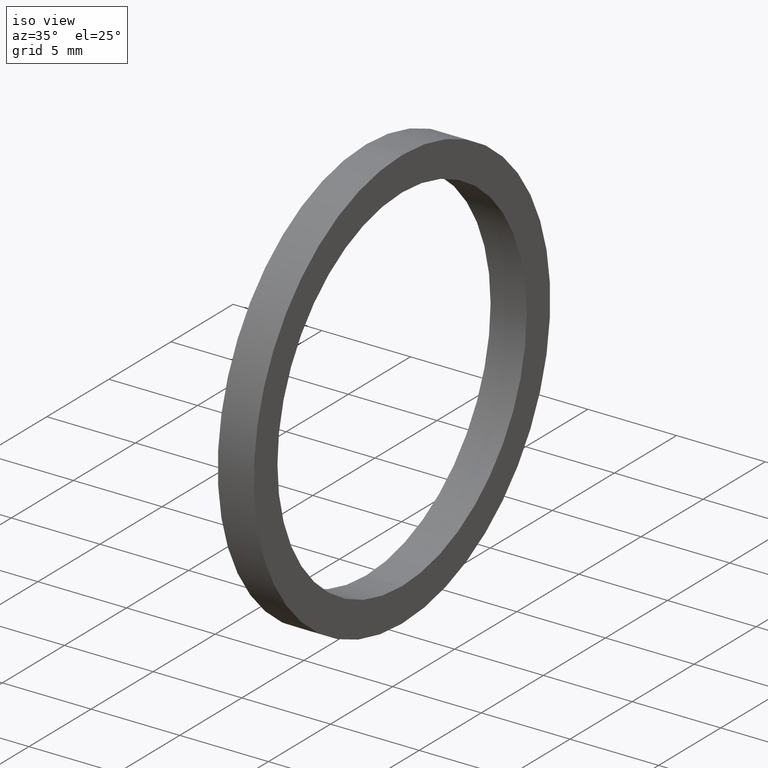
[diagram: clean part render]
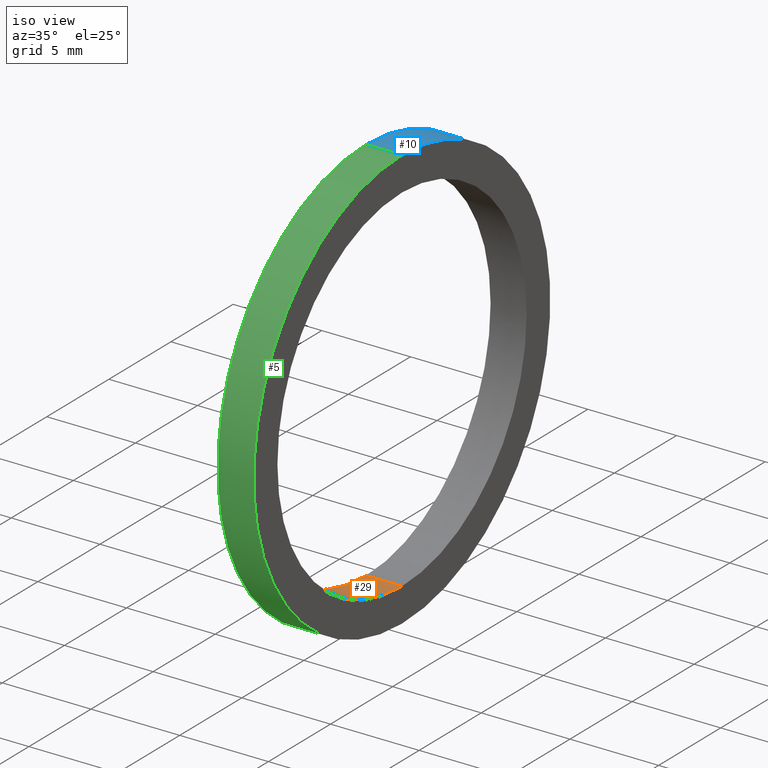
[diagram: same view with three faces highlighted in distinct colors, each labeled with its STEP entity id]
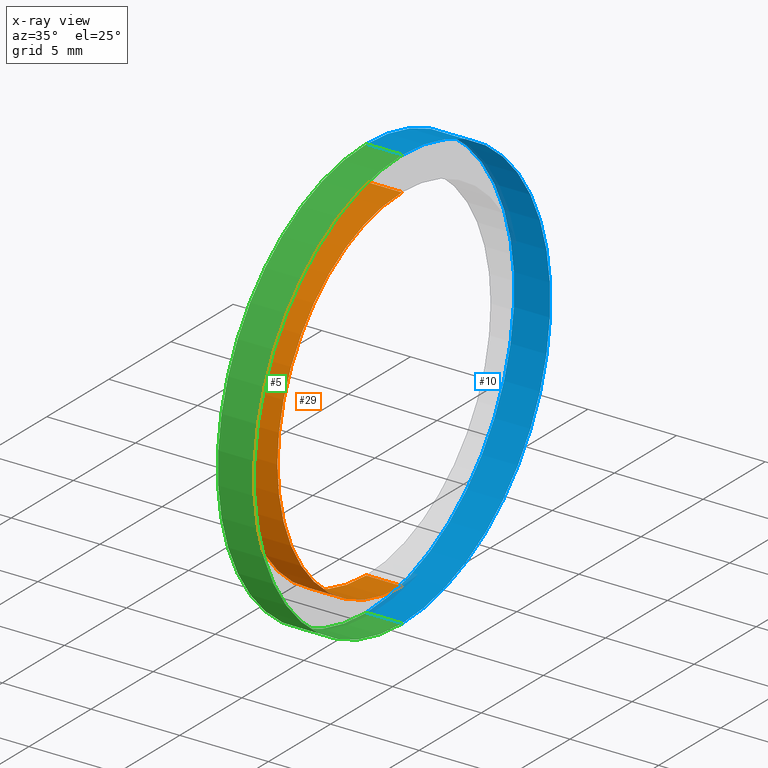
[diagram: x-ray of the same camera — body ghosted, the three highlighted faces saturated]
A machine part, iso view with three faces highlighted in distinct colors.
The next image is the same camera in x-ray (body ghosted, the three faces saturated) — at least one of them is partly hidden behind the body in this view.
Their STEP definitions:

[orange] entity #29 — the highlighted cylindrical surface (partial cylindrical patch) has radius 10.033 mm, axis along (-1, 0, 0).
#11 = ORIENTED_EDGE ( 'NONE', *, *, #12, .F. ) ;
#12 = EDGE_CURVE ( 'NONE', #34, #14, #123, .T. ) ;
#13 = EDGE_CURVE ( 'NONE', #37, #14, #119, .T. ) ;
#14 = VERTEX_POINT ( 'NONE', #114 ) ;
#15 = ORIENTED_EDGE ( 'NONE', *, *, #13, .T. ) ;
#29 = ADVANCED_FACE ( 'NONE', ( #113 ), #112, .F. ) ;
#30 = EDGE_LOOP ( 'NONE', ( #31, #35, #15, #11 ) ) ;
#31 = ORIENTED_EDGE ( 'NONE', *, *, #32, .F. ) ;
#32 = EDGE_CURVE ( 'NONE', #33, #34, #227, .T. ) ;
#33 = VERTEX_POINT ( 'NONE', #218 ) ;
#34 = VERTEX_POINT ( 'NONE', #217 ) ;
#35 = ORIENTED_EDGE ( 'NONE', *, *, #36, .T. ) ;
#36 = EDGE_CURVE ( 'NONE', #33, #37, #216, .T. ) ;
#37 = VERTEX_POINT ( 'NONE', #212 ) ;
#112 = CYLINDRICAL_SURFACE ( 'NONE', #226, 0.3950000000000000200 ) ;
#113 = FACE_OUTER_BOUND ( 'NONE', #30, .T. ) ;
#114 = CARTESIAN_POINT ( 'NONE',  ( 0.0000000000000000000, 0.0000000000000000000, 0.3950000000000000200 ) ) ;
#115 = DIRECTION ( 'NONE',  ( 0.0000000000000000000, 0.0000000000000000000, 1.000000000000000000 ) ) ;
#116 = DIRECTION ( 'NONE',  ( -1.000000000000000000, 0.0000000000000000000, 0.0000000000000000000 ) ) ;
#117 = CARTESIAN_POINT ( 'NONE',  ( 0.0000000000000000000, 0.0000000000000000000, 0.0000000000000000000 ) ) ;
#118 = AXIS2_PLACEMENT_3D ( 'NONE', #117, #116, #115 ) ;
#119 = CIRCLE ( 'NONE', #118, 0.3950000000000000200 ) ;
#120 = DIRECTION ( 'NONE',  ( -1.000000000000000000, 0.0000000000000000000, 0.0000000000000000000 ) ) ;
#121 = VECTOR ( 'NONE', #120, 39.37007874015748100 ) ;
#122 = CARTESIAN_POINT ( 'NONE',  ( -1.721125226614714300, 0.0000000000000000000, 0.3950000000000000200 ) ) ;
#123 = LINE ( 'NONE', #122, #121 ) ;
#212 = CARTESIAN_POINT ( 'NONE',  ( 0.0000000000000000000, 4.837354856632045600E-017, -0.3950000000000000200 ) ) ;
#213 = DIRECTION ( 'NONE',  ( -1.000000000000000000, 0.0000000000000000000, 0.0000000000000000000 ) ) ;
#214 = VECTOR ( 'NONE', #213, 39.37007874015748100 ) ;
#215 = CARTESIAN_POINT ( 'NONE',  ( -1.721125226614714300, 4.837354856632045600E-017, -0.3950000000000000200 ) ) ;
#216 = LINE ( 'NONE', #215, #214 ) ;
#217 = CARTESIAN_POINT ( 'NONE',  ( 0.07999999999999996000, 0.0000000000000000000, 0.3950000000000000200 ) ) ;
#218 = CARTESIAN_POINT ( 'NONE',  ( 0.07999999999999996000, 4.837354856632045600E-017, -0.3950000000000000200 ) ) ;
#219 = DIRECTION ( 'NONE',  ( 0.0000000000000000000, 0.0000000000000000000, 1.000000000000000000 ) ) ;
#220 = DIRECTION ( 'NONE',  ( -1.000000000000000000, 0.0000000000000000000, 0.0000000000000000000 ) ) ;
#221 = CARTESIAN_POINT ( 'NONE',  ( 0.07999999999999996000, 0.0000000000000000000, 0.0000000000000000000 ) ) ;
#222 = AXIS2_PLACEMENT_3D ( 'NONE', #221, #220, #219 ) ;
#223 = DIRECTION ( 'NONE',  ( 0.0000000000000000000, 0.0000000000000000000, 1.000000000000000000 ) ) ;
#224 = DIRECTION ( 'NONE',  ( -1.000000000000000000, 0.0000000000000000000, 0.0000000000000000000 ) ) ;
#225 = CARTESIAN_POINT ( 'NONE',  ( -1.721125226614714300, 0.0000000000000000000, 0.0000000000000000000 ) ) ;
#226 = AXIS2_PLACEMENT_3D ( 'NONE', #225, #224, #223 ) ;
#227 = CIRCLE ( 'NONE', #222, 0.3950000000000000200 ) ;

[blue] entity #10 — the highlighted cylindrical surface (partial cylindrical patch) has radius 11.938 mm, axis along (-1, 0, 0).
#4 = VERTEX_POINT ( 'NONE', #27 ) ;
#9 = EDGE_LOOP ( 'NONE', ( #54, #45, #47, #58 ) ) ;
#10 = ADVANCED_FACE ( 'NONE', ( #129 ), #128, .T. ) ;
#27 = CARTESIAN_POINT ( 'NONE',  ( 0.07999999999999996000, 0.0000000000000000000, 0.4699999999999999700 ) ) ;
#42 = VERTEX_POINT ( 'NONE', #211 ) ;
#43 = EDGE_CURVE ( 'NONE', #4, #42, #209, .T. ) ;
#44 = EDGE_CURVE ( 'NONE', #42, #46, #210, .T. ) ;
#45 = ORIENTED_EDGE ( 'NONE', *, *, #44, .T. ) ;
#46 = VERTEX_POINT ( 'NONE', #201 ) ;
#47 = ORIENTED_EDGE ( 'NONE', *, *, #48, .F. ) ;
#48 = EDGE_CURVE ( 'NONE', #49, #46, #200, .T. ) ;
#49 = VERTEX_POINT ( 'NONE', #195 ) ;
#54 = ORIENTED_EDGE ( 'NONE', *, *, #43, .T. ) ;
#58 = ORIENTED_EDGE ( 'NONE', *, *, #59, .F. ) ;
#59 = EDGE_CURVE ( 'NONE', #4, #49, #94, .T. ) ;
#91 = DIRECTION ( 'NONE',  ( -1.000000000000000000, 0.0000000000000000000, 0.0000000000000000000 ) ) ;
#92 = VECTOR ( 'NONE', #91, 39.37007874015748100 ) ;
#93 = CARTESIAN_POINT ( 'NONE',  ( -1.721125226614714300, 0.0000000000000000000, 0.4699999999999999700 ) ) ;
#94 = LINE ( 'NONE', #93, #92 ) ;
#124 = DIRECTION ( 'NONE',  ( 0.0000000000000000000, 0.0000000000000000000, 1.000000000000000000 ) ) ;
#125 = DIRECTION ( 'NONE',  ( -1.000000000000000000, 0.0000000000000000000, 0.0000000000000000000 ) ) ;
#126 = CARTESIAN_POINT ( 'NONE',  ( -1.721125226614714300, 0.0000000000000000000, 0.0000000000000000000 ) ) ;
#127 = AXIS2_PLACEMENT_3D ( 'NONE', #126, #125, #124 ) ;
#128 = CYLINDRICAL_SURFACE ( 'NONE', #127, 0.4699999999999999700 ) ;
#129 = FACE_OUTER_BOUND ( 'NONE', #9, .T. ) ;
#195 = CARTESIAN_POINT ( 'NONE',  ( 0.0000000000000000000, 0.0000000000000000000, 0.4699999999999999700 ) ) ;
#196 = DIRECTION ( 'NONE',  ( 0.0000000000000000000, 0.0000000000000000000, 1.000000000000000000 ) ) ;
#197 = DIRECTION ( 'NONE',  ( -1.000000000000000000, 0.0000000000000000000, 0.0000000000000000000 ) ) ;
#198 = CARTESIAN_POINT ( 'NONE',  ( 0.0000000000000000000, 0.0000000000000000000, 0.0000000000000000000 ) ) ;
#199 = AXIS2_PLACEMENT_3D ( 'NONE', #198, #197, #196 ) ;
#200 = CIRCLE ( 'NONE', #199, 0.4699999999999999700 ) ;
#201 = CARTESIAN_POINT ( 'NONE',  ( 0.0000000000000000000, 5.755839955992559700E-017, -0.4699999999999999700 ) ) ;
#202 = DIRECTION ( 'NONE',  ( -1.000000000000000000, 0.0000000000000000000, 0.0000000000000000000 ) ) ;
#203 = VECTOR ( 'NONE', #202, 39.37007874015748100 ) ;
#204 = CARTESIAN_POINT ( 'NONE',  ( -1.721125226614714300, 5.755839955992559700E-017, -0.4699999999999999700 ) ) ;
#205 = DIRECTION ( 'NONE',  ( 0.0000000000000000000, 0.0000000000000000000, 1.000000000000000000 ) ) ;
#206 = DIRECTION ( 'NONE',  ( -1.000000000000000000, 0.0000000000000000000, 0.0000000000000000000 ) ) ;
#207 = CARTESIAN_POINT ( 'NONE',  ( 0.07999999999999996000, 0.0000000000000000000, 0.0000000000000000000 ) ) ;
#208 = AXIS2_PLACEMENT_3D ( 'NONE', #207, #206, #205 ) ;
#209 = CIRCLE ( 'NONE', #208, 0.4699999999999999700 ) ;
#210 = LINE ( 'NONE', #204, #203 ) ;
#211 = CARTESIAN_POINT ( 'NONE',  ( 0.07999999999999996000, 5.755839955992559700E-017, -0.4699999999999999700 ) ) ;

[green] entity #5 — the highlighted cylindrical surface (partial cylindrical patch) has radius 11.938 mm, axis along (-1, 0, 0).
#1 = EDGE_LOOP ( 'NONE', ( #6, #2, #64, #65 ) ) ;
#2 = ORIENTED_EDGE ( 'NONE', *, *, #63, .T. ) ;
#4 = VERTEX_POINT ( 'NONE', #27 ) ;
#5 = ADVANCED_FACE ( 'NONE', ( #140 ), #137, .T. ) ;
#6 = ORIENTED_EDGE ( 'NONE', *, *, #44, .F. ) ;
#27 = CARTESIAN_POINT ( 'NONE',  ( 0.07999999999999996000, 0.0000000000000000000, 0.4699999999999999700 ) ) ;
#42 = VERTEX_POINT ( 'NONE', #211 ) ;
#44 = EDGE_CURVE ( 'NONE', #42, #46, #210, .T. ) ;
#46 = VERTEX_POINT ( 'NONE', #201 ) ;
#49 = VERTEX_POINT ( 'NONE', #195 ) ;
#51 = EDGE_CURVE ( 'NONE', #46, #49, #194, .T. ) ;
#59 = EDGE_CURVE ( 'NONE', #4, #49, #94, .T. ) ;
#63 = EDGE_CURVE ( 'NONE', #42, #4, #83, .T. ) ;
#64 = ORIENTED_EDGE ( 'NONE', *, *, #59, .T. ) ;
#65 = ORIENTED_EDGE ( 'NONE', *, *, #51, .F. ) ;
#79 = DIRECTION ( 'NONE',  ( 0.0000000000000000000, 0.0000000000000000000, 1.000000000000000000 ) ) ;
#80 = DIRECTION ( 'NONE',  ( -1.000000000000000000, 0.0000000000000000000, 0.0000000000000000000 ) ) ;
#81 = CARTESIAN_POINT ( 'NONE',  ( 0.07999999999999996000, 0.0000000000000000000, 0.0000000000000000000 ) ) ;
#82 = AXIS2_PLACEMENT_3D ( 'NONE', #81, #80, #79 ) ;
#83 = CIRCLE ( 'NONE', #82, 0.4699999999999999700 ) ;
#91 = DIRECTION ( 'NONE',  ( -1.000000000000000000, 0.0000000000000000000, 0.0000000000000000000 ) ) ;
#92 = VECTOR ( 'NONE', #91, 39.37007874015748100 ) ;
#93 = CARTESIAN_POINT ( 'NONE',  ( -1.721125226614714300, 0.0000000000000000000, 0.4699999999999999700 ) ) ;
#94 = LINE ( 'NONE', #93, #92 ) ;
#134 = DIRECTION ( 'NONE',  ( 0.0000000000000000000, 0.0000000000000000000, 1.000000000000000000 ) ) ;
#135 = DIRECTION ( 'NONE',  ( -1.000000000000000000, 0.0000000000000000000, 0.0000000000000000000 ) ) ;
#136 = AXIS2_PLACEMENT_3D ( 'NONE', #139, #135, #134 ) ;
#137 = CYLINDRICAL_SURFACE ( 'NONE', #136, 0.4699999999999999700 ) ;
#139 = CARTESIAN_POINT ( 'NONE',  ( -1.721125226614714300, 0.0000000000000000000, 0.0000000000000000000 ) ) ;
#140 = FACE_OUTER_BOUND ( 'NONE', #1, .T. ) ;
#190 = DIRECTION ( 'NONE',  ( 0.0000000000000000000, 0.0000000000000000000, 1.000000000000000000 ) ) ;
#191 = DIRECTION ( 'NONE',  ( -1.000000000000000000, 0.0000000000000000000, 0.0000000000000000000 ) ) ;
#192 = CARTESIAN_POINT ( 'NONE',  ( 0.0000000000000000000, 0.0000000000000000000, 0.0000000000000000000 ) ) ;
#193 = AXIS2_PLACEMENT_3D ( 'NONE', #192, #191, #190 ) ;
#194 = CIRCLE ( 'NONE', #193, 0.4699999999999999700 ) ;
#195 = CARTESIAN_POINT ( 'NONE',  ( 0.0000000000000000000, 0.0000000000000000000, 0.4699999999999999700 ) ) ;
#201 = CARTESIAN_POINT ( 'NONE',  ( 0.0000000000000000000, 5.755839955992559700E-017, -0.4699999999999999700 ) ) ;
#202 = DIRECTION ( 'NONE',  ( -1.000000000000000000, 0.0000000000000000000, 0.0000000000000000000 ) ) ;
#203 = VECTOR ( 'NONE', #202, 39.37007874015748100 ) ;
#204 = CARTESIAN_POINT ( 'NONE',  ( -1.721125226614714300, 5.755839955992559700E-017, -0.4699999999999999700 ) ) ;
#210 = LINE ( 'NONE', #204, #203 ) ;
#211 = CARTESIAN_POINT ( 'NONE',  ( 0.07999999999999996000, 5.755839955992559700E-017, -0.4699999999999999700 ) ) ;